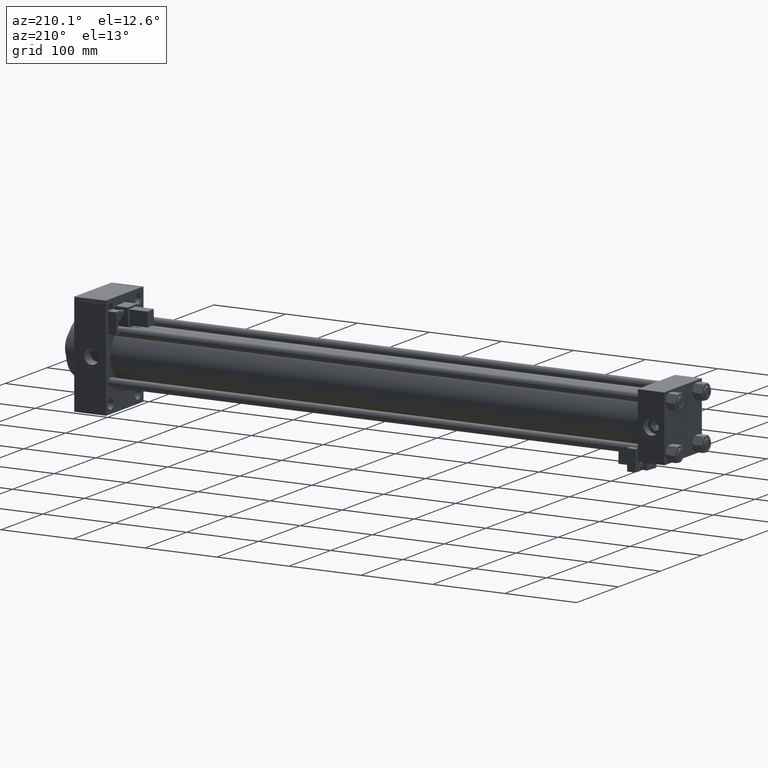
[diagram: clean part render]
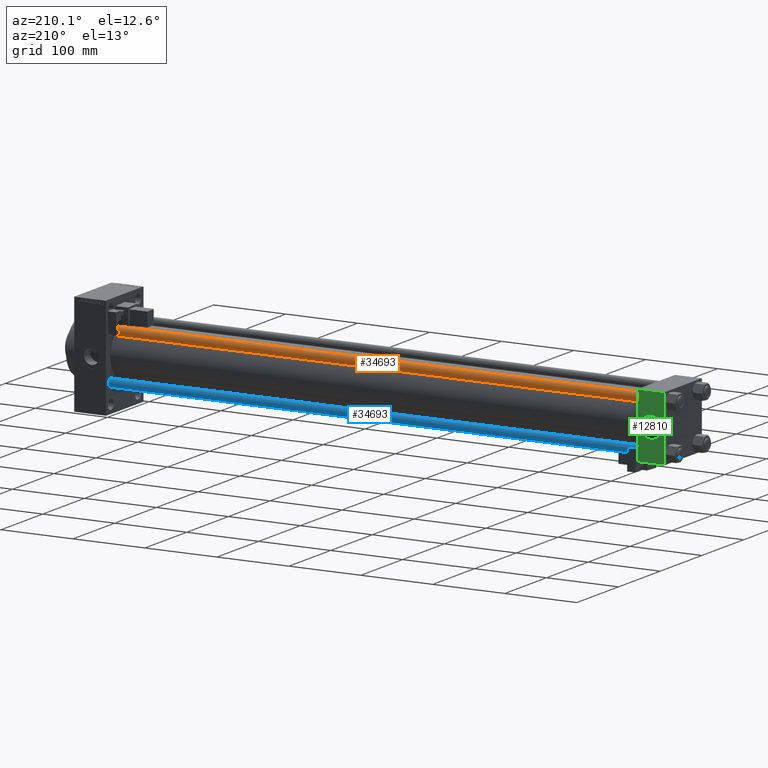
[diagram: same view with three faces highlighted in distinct colors, each labeled with its STEP entity id]
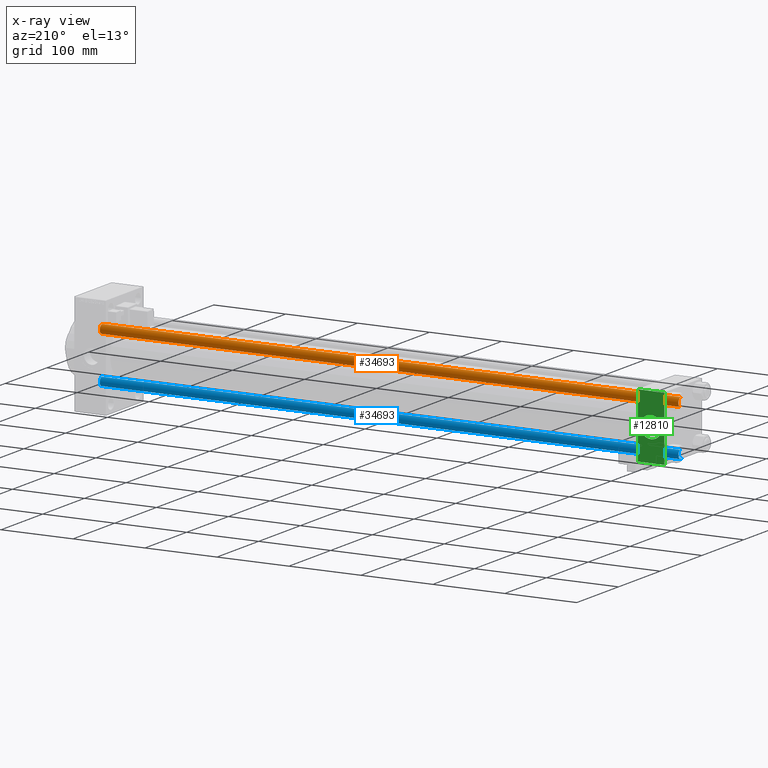
[diagram: x-ray of the same camera — body ghosted, the three highlighted faces saturated]
A machine part, auxiliary view with three faces highlighted in distinct colors.
The next image is the same camera in x-ray (body ghosted, the three faces saturated) — at least one of them is partly hidden behind the body in this view.
Their STEP definitions:

[orange] entity #34693 — the highlighted cylindrical surface (edge-blend (fillet) strip) has radius 6 mm, axis along (-1, -0, 0).
#1708 = DIRECTION ( 'NONE',  ( -0.000000000000000000, -0.000000000000000000, -1.000000000000000000 ) ) ;
#3522 = DIRECTION ( 'NONE',  ( 1.000000000000000000, 0.000000000000000000, 0.000000000000000000 ) ) ;
#5898 = CIRCLE ( 'NONE', #25156, 6.000000000000000888 ) ;
#6574 = AXIS2_PLACEMENT_3D ( 'NONE', #16734, #31961, #35632 ) ;
#6849 = CARTESIAN_POINT ( 'NONE',  ( -6.000000000000000888, 0.000000000000000000, 0.5000000000000559552 ) ) ;
#7961 = AXIS2_PLACEMENT_3D ( 'NONE', #28426, #35504, #3522 ) ;
#10086 = LINE ( 'NONE', #29248, #34904 ) ;
#10100 = DIRECTION ( 'NONE',  ( 1.000000000000000000, 0.000000000000000000, 0.000000000000000000 ) ) ;
#10476 = LINE ( 'NONE', #42989, #39745 ) ;
#11061 = ORIENTED_EDGE ( 'NONE', *, *, #15473, .T. ) ;
#14693 = EDGE_CURVE ( 'NONE', #18471, #39548, #10476, .T. ) ;
#15473 = EDGE_CURVE ( 'NONE', #19831, #18471, #50701, .T. ) ;
#15947 = FACE_OUTER_BOUND ( 'NONE', #27579, .T. ) ;
#16734 = CARTESIAN_POINT ( 'NONE',  ( 0.000000000000000000, 0.000000000000000000, 805.0000000000000000 ) ) ;
#18471 = VERTEX_POINT ( 'NONE', #25135 ) ;
#19831 = VERTEX_POINT ( 'NONE', #30842 ) ;
#20949 = ORIENTED_EDGE ( 'NONE', *, *, #28481, .F. ) ;
#25135 = CARTESIAN_POINT ( 'NONE',  ( 6.000000000000000888, 7.347880794884120722E-16, 804.5000000000002274 ) ) ;
#25156 = AXIS2_PLACEMENT_3D ( 'NONE', #27057, #46054, #10100 ) ;
#27057 = CARTESIAN_POINT ( 'NONE',  ( 0.000000000000000000, 0.000000000000000000, 0.5000000000000559552 ) ) ;
#27579 = EDGE_LOOP ( 'NONE', ( #11061, #44303, #35113, #20949 ) ) ;
#28027 = CYLINDRICAL_SURFACE ( 'NONE', #6574, 6.000000000000000888 ) ;
#28426 = CARTESIAN_POINT ( 'NONE',  ( 0.000000000000000000, 0.000000000000000000, 804.5000000000002274 ) ) ;
#28481 = EDGE_CURVE ( 'NONE', #19831, #47334, #10086, .T. ) ;
#29248 = CARTESIAN_POINT ( 'NONE',  ( -6.000000000000000888, 0.000000000000000000, 805.0000000000000000 ) ) ;
#30842 = CARTESIAN_POINT ( 'NONE',  ( -6.000000000000000888, 0.000000000000000000, 804.5000000000002274 ) ) ;
#31961 = DIRECTION ( 'NONE',  ( -0.000000000000000000, -0.000000000000000000, -1.000000000000000000 ) ) ;
#34693 = ADVANCED_FACE ( 'NONE', ( #15947 ), #28027, .T. ) ;
#34904 = VECTOR ( 'NONE', #1708, 1000.000000000000000 ) ;
#35113 = ORIENTED_EDGE ( 'NONE', *, *, #38874, .T. ) ;
#35504 = DIRECTION ( 'NONE',  ( 0.000000000000000000, 0.000000000000000000, -1.000000000000000000 ) ) ;
#35632 = DIRECTION ( 'NONE',  ( -1.000000000000000000, 0.000000000000000000, 0.000000000000000000 ) ) ;
#38540 = DIRECTION ( 'NONE',  ( -0.000000000000000000, -0.000000000000000000, -1.000000000000000000 ) ) ;
#38874 = EDGE_CURVE ( 'NONE', #39548, #47334, #5898, .T. ) ;
#39548 = VERTEX_POINT ( 'NONE', #44779 ) ;
#39745 = VECTOR ( 'NONE', #38540, 1000.000000000000000 ) ;
#42989 = CARTESIAN_POINT ( 'NONE',  ( 6.000000000000000888, 7.347880794884120722E-16, 805.0000000000000000 ) ) ;
#44303 = ORIENTED_EDGE ( 'NONE', *, *, #14693, .T. ) ;
#44779 = CARTESIAN_POINT ( 'NONE',  ( 6.000000000000000888, 7.347880794884120722E-16, 0.5000000000000559552 ) ) ;
#46054 = DIRECTION ( 'NONE',  ( -0.000000000000000000, -0.000000000000000000, 1.000000000000000000 ) ) ;
#47334 = VERTEX_POINT ( 'NONE', #6849 ) ;
#50701 = CIRCLE ( 'NONE', #7961, 6.000000000000000888 ) ;

[blue] entity #34693 — the highlighted cylindrical surface (edge-blend (fillet) strip) has radius 6 mm, axis along (1, -0, 0).
#1708 = DIRECTION ( 'NONE',  ( -0.000000000000000000, -0.000000000000000000, -1.000000000000000000 ) ) ;
#3522 = DIRECTION ( 'NONE',  ( 1.000000000000000000, 0.000000000000000000, 0.000000000000000000 ) ) ;
#5898 = CIRCLE ( 'NONE', #25156, 6.000000000000000888 ) ;
#6574 = AXIS2_PLACEMENT_3D ( 'NONE', #16734, #31961, #35632 ) ;
#6849 = CARTESIAN_POINT ( 'NONE',  ( -6.000000000000000888, 0.000000000000000000, 0.5000000000000559552 ) ) ;
#7961 = AXIS2_PLACEMENT_3D ( 'NONE', #28426, #35504, #3522 ) ;
#10086 = LINE ( 'NONE', #29248, #34904 ) ;
#10100 = DIRECTION ( 'NONE',  ( 1.000000000000000000, 0.000000000000000000, 0.000000000000000000 ) ) ;
#10476 = LINE ( 'NONE', #42989, #39745 ) ;
#11061 = ORIENTED_EDGE ( 'NONE', *, *, #15473, .T. ) ;
#14693 = EDGE_CURVE ( 'NONE', #18471, #39548, #10476, .T. ) ;
#15473 = EDGE_CURVE ( 'NONE', #19831, #18471, #50701, .T. ) ;
#15947 = FACE_OUTER_BOUND ( 'NONE', #27579, .T. ) ;
#16734 = CARTESIAN_POINT ( 'NONE',  ( 0.000000000000000000, 0.000000000000000000, 805.0000000000000000 ) ) ;
#18471 = VERTEX_POINT ( 'NONE', #25135 ) ;
#19831 = VERTEX_POINT ( 'NONE', #30842 ) ;
#20949 = ORIENTED_EDGE ( 'NONE', *, *, #28481, .F. ) ;
#25135 = CARTESIAN_POINT ( 'NONE',  ( 6.000000000000000888, 7.347880794884120722E-16, 804.5000000000002274 ) ) ;
#25156 = AXIS2_PLACEMENT_3D ( 'NONE', #27057, #46054, #10100 ) ;
#27057 = CARTESIAN_POINT ( 'NONE',  ( 0.000000000000000000, 0.000000000000000000, 0.5000000000000559552 ) ) ;
#27579 = EDGE_LOOP ( 'NONE', ( #11061, #44303, #35113, #20949 ) ) ;
#28027 = CYLINDRICAL_SURFACE ( 'NONE', #6574, 6.000000000000000888 ) ;
#28426 = CARTESIAN_POINT ( 'NONE',  ( 0.000000000000000000, 0.000000000000000000, 804.5000000000002274 ) ) ;
#28481 = EDGE_CURVE ( 'NONE', #19831, #47334, #10086, .T. ) ;
#29248 = CARTESIAN_POINT ( 'NONE',  ( -6.000000000000000888, 0.000000000000000000, 805.0000000000000000 ) ) ;
#30842 = CARTESIAN_POINT ( 'NONE',  ( -6.000000000000000888, 0.000000000000000000, 804.5000000000002274 ) ) ;
#31961 = DIRECTION ( 'NONE',  ( -0.000000000000000000, -0.000000000000000000, -1.000000000000000000 ) ) ;
#34693 = ADVANCED_FACE ( 'NONE', ( #15947 ), #28027, .T. ) ;
#34904 = VECTOR ( 'NONE', #1708, 1000.000000000000000 ) ;
#35113 = ORIENTED_EDGE ( 'NONE', *, *, #38874, .T. ) ;
#35504 = DIRECTION ( 'NONE',  ( 0.000000000000000000, 0.000000000000000000, -1.000000000000000000 ) ) ;
#35632 = DIRECTION ( 'NONE',  ( -1.000000000000000000, 0.000000000000000000, 0.000000000000000000 ) ) ;
#38540 = DIRECTION ( 'NONE',  ( -0.000000000000000000, -0.000000000000000000, -1.000000000000000000 ) ) ;
#38874 = EDGE_CURVE ( 'NONE', #39548, #47334, #5898, .T. ) ;
#39548 = VERTEX_POINT ( 'NONE', #44779 ) ;
#39745 = VECTOR ( 'NONE', #38540, 1000.000000000000000 ) ;
#42989 = CARTESIAN_POINT ( 'NONE',  ( 6.000000000000000888, 7.347880794884120722E-16, 805.0000000000000000 ) ) ;
#44303 = ORIENTED_EDGE ( 'NONE', *, *, #14693, .T. ) ;
#44779 = CARTESIAN_POINT ( 'NONE',  ( 6.000000000000000888, 7.347880794884120722E-16, 0.5000000000000559552 ) ) ;
#46054 = DIRECTION ( 'NONE',  ( -0.000000000000000000, -0.000000000000000000, 1.000000000000000000 ) ) ;
#47334 = VERTEX_POINT ( 'NONE', #6849 ) ;
#50701 = CIRCLE ( 'NONE', #7961, 6.000000000000000888 ) ;

[green] entity #12810 — the highlighted planar face has unit normal (0, 1, 0).
#1441 = DIRECTION ( 'NONE',  ( -0.000000000000000000, 1.000000000000000000, 0.000000000000000000 ) ) ;
#1595 = VECTOR ( 'NONE', #4874, 1000.000000000000000 ) ;
#4872 = FACE_BOUND ( 'NONE', #41419, .T. ) ;
#4874 = DIRECTION ( 'NONE',  ( 1.000000000000000000, 0.000000000000000000, 0.000000000000000000 ) ) ;
#5151 = CIRCLE ( 'NONE', #40303, 15.00000000000000178 ) ;
#6594 = CARTESIAN_POINT ( 'NONE',  ( 37.00000000000000000, 44.99999999999998579, 45.00000000000001421 ) ) ;
#7275 = VERTEX_POINT ( 'NONE', #32700 ) ;
#9560 = CARTESIAN_POINT ( 'NONE',  ( 37.00000000000000000, 44.99999999999998579, 44.50000000000001421 ) ) ;
#9589 = VECTOR ( 'NONE', #10516, 1000.000000000000000 ) ;
#9746 = LINE ( 'NONE', #6594, #9589 ) ;
#10234 = CARTESIAN_POINT ( 'NONE',  ( 0.000000000000000000, 44.99999999999998579, -44.49999999999995737 ) ) ;
#10516 = DIRECTION ( 'NONE',  ( 0.000000000000000000, 0.000000000000000000, -1.000000000000000000 ) ) ;
#10818 = ORIENTED_EDGE ( 'NONE', *, *, #49539, .T. ) ;
#12335 = CARTESIAN_POINT ( 'NONE',  ( 0.000000000000000000, 44.99999999999998579, 45.00000000000001421 ) ) ;
#12810 = ADVANCED_FACE ( 'NONE', ( #4872, #45503 ), #20576, .T. ) ;
#13191 = ORIENTED_EDGE ( 'NONE', *, *, #36148, .T. ) ;
#15369 = VECTOR ( 'NONE', #35704, 1000.000000000000000 ) ;
#16064 = VERTEX_POINT ( 'NONE', #10234 ) ;
#17352 = CARTESIAN_POINT ( 'NONE',  ( 18.50000000000000000, 44.99999999999998579, 0.000000000000000000 ) ) ;
#17684 = CARTESIAN_POINT ( 'NONE',  ( 18.50000000000000000, 44.99999999999998579, 0.000000000000000000 ) ) ;
#17995 = AXIS2_PLACEMENT_3D ( 'NONE', #17352, #49642, #45443 ) ;
#18137 = CARTESIAN_POINT ( 'NONE',  ( 37.00000000000000000, 44.99999999999998579, -44.49999999999995737 ) ) ;
#19602 = VERTEX_POINT ( 'NONE', #20886 ) ;
#20389 = VECTOR ( 'NONE', #44627, 1000.000000000000000 ) ;
#20560 = ORIENTED_EDGE ( 'NONE', *, *, #48382, .F. ) ;
#20576 = PLANE ( 'NONE',  #48200 ) ;
#20886 = CARTESIAN_POINT ( 'NONE',  ( 0.000000000000000000, 44.99999999999998579, 44.50000000000001421 ) ) ;
#24362 = EDGE_LOOP ( 'NONE', ( #47248, #10818, #20560, #13191 ) ) ;
#29497 = LINE ( 'NONE', #9560, #1595 ) ;
#31715 = VERTEX_POINT ( 'NONE', #32595 ) ;
#31844 = ORIENTED_EDGE ( 'NONE', *, *, #42745, .F. ) ;
#32595 = CARTESIAN_POINT ( 'NONE',  ( 37.00000000000000000, 44.99999999999998579, 44.50000000000001421 ) ) ;
#32700 = CARTESIAN_POINT ( 'NONE',  ( 18.50000000000000000, 44.99999999999998579, 15.00000000000000178 ) ) ;
#34231 = DIRECTION ( 'NONE',  ( 0.000000000000000000, 0.000000000000000000, 1.000000000000000000 ) ) ;
#35442 = CARTESIAN_POINT ( 'NONE',  ( 37.00000000000000000, 44.99999999999998579, -44.49999999999998579 ) ) ;
#35704 = DIRECTION ( 'NONE',  ( -1.000000000000000000, 0.000000000000000000, 0.000000000000000000 ) ) ;
#35932 = VERTEX_POINT ( 'NONE', #51055 ) ;
#36148 = EDGE_CURVE ( 'NONE', #19602, #31715, #29497, .T. ) ;
#37643 = DIRECTION ( 'NONE',  ( 0.000000000000000000, 1.000000000000000000, 0.000000000000000000 ) ) ;
#40156 = LINE ( 'NONE', #12335, #20389 ) ;
#40303 = AXIS2_PLACEMENT_3D ( 'NONE', #17684, #37643, #34231 ) ;
#40645 = CIRCLE ( 'NONE', #17995, 15.00000000000000178 ) ;
#41302 = DIRECTION ( 'NONE',  ( 0.000000000000000000, -0.000000000000000000, 1.000000000000000000 ) ) ;
#41419 = EDGE_LOOP ( 'NONE', ( #31844, #49066 ) ) ;
#42745 = EDGE_CURVE ( 'NONE', #7275, #35932, #5151, .T. ) ;
#43126 = VERTEX_POINT ( 'NONE', #18137 ) ;
#44480 = CARTESIAN_POINT ( 'NONE',  ( 37.00000000000000000, 44.99999999999998579, 45.00000000000001421 ) ) ;
#44627 = DIRECTION ( 'NONE',  ( 0.000000000000000000, 0.000000000000000000, -1.000000000000000000 ) ) ;
#45443 = DIRECTION ( 'NONE',  ( 0.000000000000000000, 0.000000000000000000, 1.000000000000000000 ) ) ;
#45503 = FACE_OUTER_BOUND ( 'NONE', #24362, .T. ) ;
#47248 = ORIENTED_EDGE ( 'NONE', *, *, #50621, .T. ) ;
#47522 = LINE ( 'NONE', #35442, #15369 ) ;
#48200 = AXIS2_PLACEMENT_3D ( 'NONE', #44480, #1441, #41302 ) ;
#48382 = EDGE_CURVE ( 'NONE', #19602, #16064, #40156, .T. ) ;
#49066 = ORIENTED_EDGE ( 'NONE', *, *, #51496, .F. ) ;
#49539 = EDGE_CURVE ( 'NONE', #43126, #16064, #47522, .T. ) ;
#49642 = DIRECTION ( 'NONE',  ( 0.000000000000000000, 1.000000000000000000, 0.000000000000000000 ) ) ;
#50621 = EDGE_CURVE ( 'NONE', #31715, #43126, #9746, .T. ) ;
#51055 = CARTESIAN_POINT ( 'NONE',  ( 18.50000000000000355, 44.99999999999998579, -15.00000000000000178 ) ) ;
#51496 = EDGE_CURVE ( 'NONE', #35932, #7275, #40645, .T. ) ;